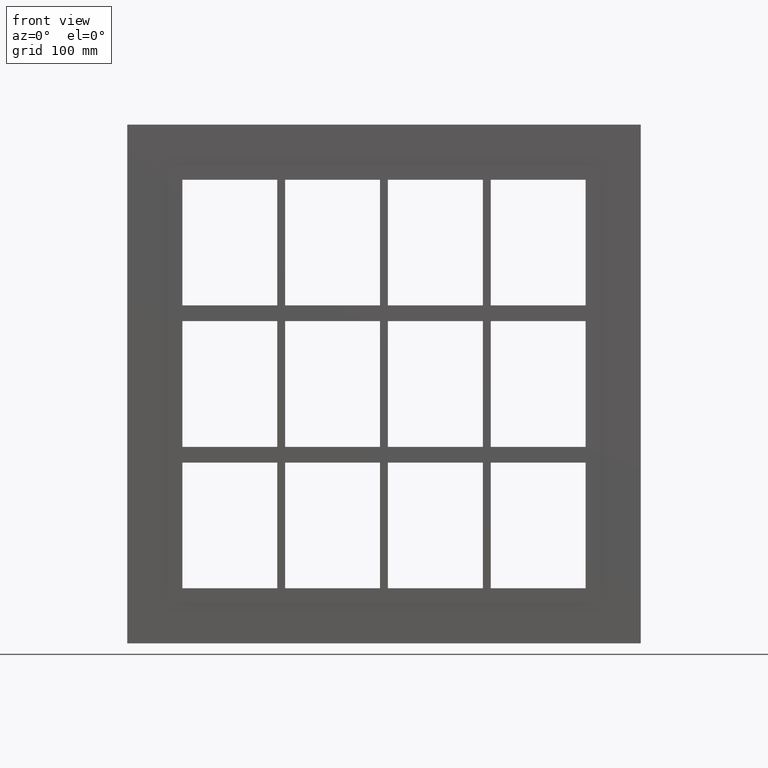
[diagram: clean part render]
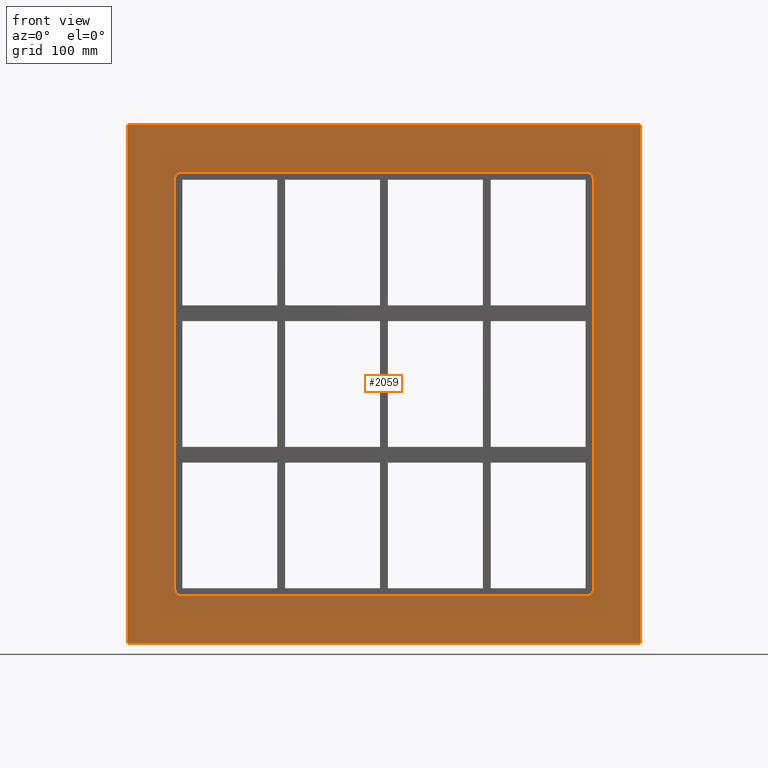
[diagram: same view with one face highlighted and labeled with its STEP entity id]
A machine part, front view. The second image highlights one B-rep face of the part: STEP entity #2059.
In plain terms, the highlighted planar face has unit normal (0, 1, 0).
Its self-contained STEP definition (entity closure, byte-faithful):
#1950=CARTESIAN_POINT('',(0.0,0.0,0.0));
#1951=DIRECTION('',(0.0,1.0,0.0));
#1952=DIRECTION('',(0.0,0.0,1.0));
#1953=AXIS2_PLACEMENT_3D('',#1950,#1951,#1952);
#1954=PLANE('',#1953);
#1955=CARTESIAN_POINT('',(-326.00000000000011,0.0,329.25000000000006));
#1956=VERTEX_POINT('',#1955);
#1957=CARTESIAN_POINT('',(326.00000000000011,0.0,329.25000000000006));
#1958=VERTEX_POINT('',#1957);
#1959=CARTESIAN_POINT('',(-326.00000000000011,0.0,329.25000000000006));
#1960=DIRECTION('',(1.0,0.0,0.0));
#1961=VECTOR('',#1960,652.00000000000023);
#1962=LINE('',#1959,#1961);
#1963=EDGE_CURVE('',#1956,#1958,#1962,.T.);
#1964=ORIENTED_EDGE('',*,*,#1963,.F.);
#1965=CARTESIAN_POINT('',(-326.00000000000011,0.0,-329.25000000000006));
#1966=VERTEX_POINT('',#1965);
#1967=CARTESIAN_POINT('',(-326.00000000000011,0.0,-329.25000000000006));
#1968=DIRECTION('',(0.0,0.0,1.0));
#1969=VECTOR('',#1968,658.50000000000011);
#1970=LINE('',#1967,#1969);
#1971=EDGE_CURVE('',#1966,#1956,#1970,.T.);
#1972=ORIENTED_EDGE('',*,*,#1971,.F.);
#1973=CARTESIAN_POINT('',(326.00000000000011,0.0,-329.25000000000006));
#1974=VERTEX_POINT('',#1973);
#1975=CARTESIAN_POINT('',(326.00000000000011,0.0,-329.25000000000006));
#1976=DIRECTION('',(-1.0,0.0,0.0));
#1977=VECTOR('',#1976,652.00000000000023);
#1978=LINE('',#1975,#1977);
#1979=EDGE_CURVE('',#1974,#1966,#1978,.T.);
#1980=ORIENTED_EDGE('',*,*,#1979,.F.);
#1981=CARTESIAN_POINT('',(326.00000000000011,0.0,329.25000000000006));
#1982=DIRECTION('',(0.0,0.0,-1.0));
#1983=VECTOR('',#1982,658.50000000000011);
#1984=LINE('',#1981,#1983);
#1985=EDGE_CURVE('',#1958,#1974,#1984,.T.);
#1986=ORIENTED_EDGE('',*,*,#1985,.F.);
#1987=EDGE_LOOP('',(#1964,#1972,#1980,#1986));
#1988=FACE_OUTER_BOUND('',#1987,.T.);
#1989=CARTESIAN_POINT('',(-266.0,0.0,-259.25));
#1990=VERTEX_POINT('',#1989);
#1991=CARTESIAN_POINT('',(-256.0,0.0,-269.25));
#1992=VERTEX_POINT('',#1991);
#1993=CARTESIAN_POINT('',(-256.0,0.0,-259.25));
#1994=DIRECTION('',(0.0,-1.0,0.0));
#1995=DIRECTION('',(-0.707106781186547,0.0,-0.707106781186547));
#1996=AXIS2_PLACEMENT_3D('',#1993,#1994,#1995);
#1997=CIRCLE('',#1996,9.999999999999998);
#1998=EDGE_CURVE('',#1990,#1992,#1997,.T.);
#1999=ORIENTED_EDGE('',*,*,#1998,.F.);
#2000=CARTESIAN_POINT('',(-266.0,0.0,259.25000000000006));
#2001=VERTEX_POINT('',#2000);
#2002=CARTESIAN_POINT('',(-266.0,0.0,259.25));
#2003=DIRECTION('',(0.0,0.0,-1.0));
#2004=VECTOR('',#2003,518.5);
#2005=LINE('',#2002,#2004);
#2006=EDGE_CURVE('',#2001,#1990,#2005,.T.);
#2007=ORIENTED_EDGE('',*,*,#2006,.F.);
#2008=CARTESIAN_POINT('',(-256.0,0.0,269.25000000000006));
#2009=VERTEX_POINT('',#2008);
#2010=CARTESIAN_POINT('',(-256.0,0.0,259.25000000000006));
#2011=DIRECTION('',(0.0,-1.0,0.0));
#2012=DIRECTION('',(-0.707106781186547,0.0,0.707106781186547));
#2013=AXIS2_PLACEMENT_3D('',#2010,#2011,#2012);
#2014=CIRCLE('',#2013,9.999999999999998);
#2015=EDGE_CURVE('',#2009,#2001,#2014,.T.);
#2016=ORIENTED_EDGE('',*,*,#2015,.F.);
#2017=CARTESIAN_POINT('',(256.0,0.0,269.25000000000006));
#2018=VERTEX_POINT('',#2017);
#2019=CARTESIAN_POINT('',(256.00000000000006,0.0,269.25000000000006));
#2020=DIRECTION('',(-1.0,0.0,0.0));
#2021=VECTOR('',#2020,512.0);
#2022=LINE('',#2019,#2021);
#2023=EDGE_CURVE('',#2018,#2009,#2022,.T.);
#2024=ORIENTED_EDGE('',*,*,#2023,.F.);
#2025=CARTESIAN_POINT('',(266.0,0.0,259.25000000000006));
#2026=VERTEX_POINT('',#2025);
#2027=CARTESIAN_POINT('',(256.0,0.0,259.25000000000006));
#2028=DIRECTION('',(0.0,-1.0,0.0));
#2029=DIRECTION('',(0.707106781186547,0.0,0.707106781186547));
#2030=AXIS2_PLACEMENT_3D('',#2027,#2028,#2029);
#2031=CIRCLE('',#2030,9.999999999999998);
#2032=EDGE_CURVE('',#2026,#2018,#2031,.T.);
#2033=ORIENTED_EDGE('',*,*,#2032,.F.);
#2034=CARTESIAN_POINT('',(266.0,0.0,-259.25));
#2035=VERTEX_POINT('',#2034);
#2036=CARTESIAN_POINT('',(266.0,0.0,-259.25));
#2037=DIRECTION('',(0.0,0.0,1.0));
#2038=VECTOR('',#2037,518.5);
#2039=LINE('',#2036,#2038);
#2040=EDGE_CURVE('',#2035,#2026,#2039,.T.);
#2041=ORIENTED_EDGE('',*,*,#2040,.F.);
#2042=CARTESIAN_POINT('',(256.0,0.0,-269.25));
#2043=VERTEX_POINT('',#2042);
#2044=CARTESIAN_POINT('',(256.0,0.0,-259.25));
#2045=DIRECTION('',(0.0,-1.0,0.0));
#2046=DIRECTION('',(0.707106781186547,0.0,-0.707106781186547));
#2047=AXIS2_PLACEMENT_3D('',#2044,#2045,#2046);
#2048=CIRCLE('',#2047,9.999999999999998);
#2049=EDGE_CURVE('',#2043,#2035,#2048,.T.);
#2050=ORIENTED_EDGE('',*,*,#2049,.F.);
#2051=CARTESIAN_POINT('',(-256.00000000000006,0.0,-269.25));
#2052=DIRECTION('',(1.0,0.0,0.0));
#2053=VECTOR('',#2052,512.0);
#2054=LINE('',#2051,#2053);
#2055=EDGE_CURVE('',#1992,#2043,#2054,.T.);
#2056=ORIENTED_EDGE('',*,*,#2055,.F.);
#2057=EDGE_LOOP('',(#1999,#2007,#2016,#2024,#2033,#2041,#2050,#2056));
#2058=FACE_BOUND('',#2057,.T.);
#2059=ADVANCED_FACE('',(#1988,#2058),#1954,.F.);